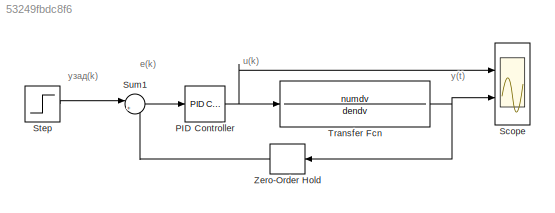
MODEL slx_53249fbdc8f6
KIND model
CONFIG AbsTol = auto
CONFIG EnableMultiTasking = off
CONFIG FixedStep = 1e-6
CONFIG MaxStep = auto
CONFIG MinStep = auto
CONFIG RelTol = 1e-3
CONFIG SampleTimeConstraint = Unconstrained
CONFIG SolverName = FixedStepAuto
CONFIG StartTime = 0.0
CONFIG StopTime = 0.02
BLOCK [Reference] PID Controller  REF=slpidlib/PID Controller
  Ports = [1, 1]
  SourceBlock = slpidlib/PID Controller
  SourceProductBaseCode = SL
  SourceType = PID 1dof
BLOCK [Scope] Scope
  Floating = off
  NumInputPorts = 2
  Ports = [2]
  ScopeSpecificationString = Simulink.scopes.TimeScopeBlockCfg('CurrentConfiguration', extmgr.ConfigurationSet(extmgr.Configuration('Core','General UI',true,'FigureColor',[1 1 1]),extmgr.Configuration('Core','Source UI',true),extmgr.Configuration('Sources','WiredSimulink',true),extmgr.Configuration('Visuals','Time Domain',true,'SerializedDisplays',{struct('MinYLimReal','-1.02405','MaxYLimReal','2.49406','YLabelReal','','MinYL...<+1669ch>
BLOCK [Step] Step
  SampleTime = 0
  Time = 0
BLOCK [Sum] Sum1
  Inputs = |+-
  Ports = [2, 1]
BLOCK [TransferFcn] Transfer Fcn
  Denominator = dendv
  Numerator = numdv
BLOCK [ZeroOrderHold] Zero-Order Hold
  SampleTime = 1e-6
ANNOTATION (root): u(k)
ANNOTATION (root): e(k)
ANNOTATION (root): y зад (k)
ANNOTATION (root): y(t)
NET PID Controller:1 -> Scope:1, Transfer Fcn:1
LINE Step:1 -> Sum1:1
LINE Sum1:1 -> PID Controller:1
NET Transfer Fcn:1 -> Scope:2, Zero-Order Hold:1
LINE Zero-Order Hold:1 -> Sum1:2
note: NET lines group one-source signal fan-out (src -> all destinations, sorted); 1:1 wires keep LINE
